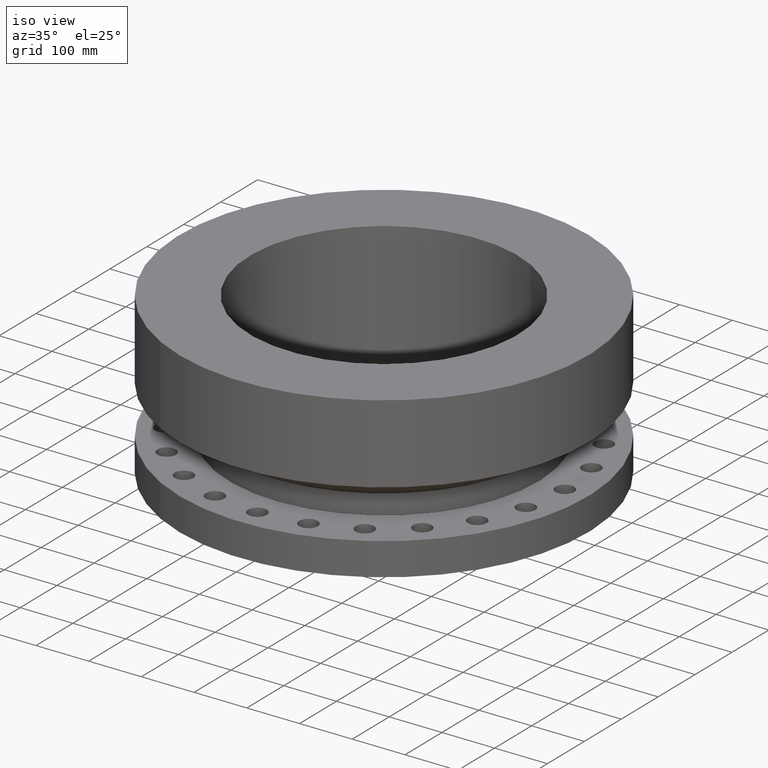
[diagram: clean part render]
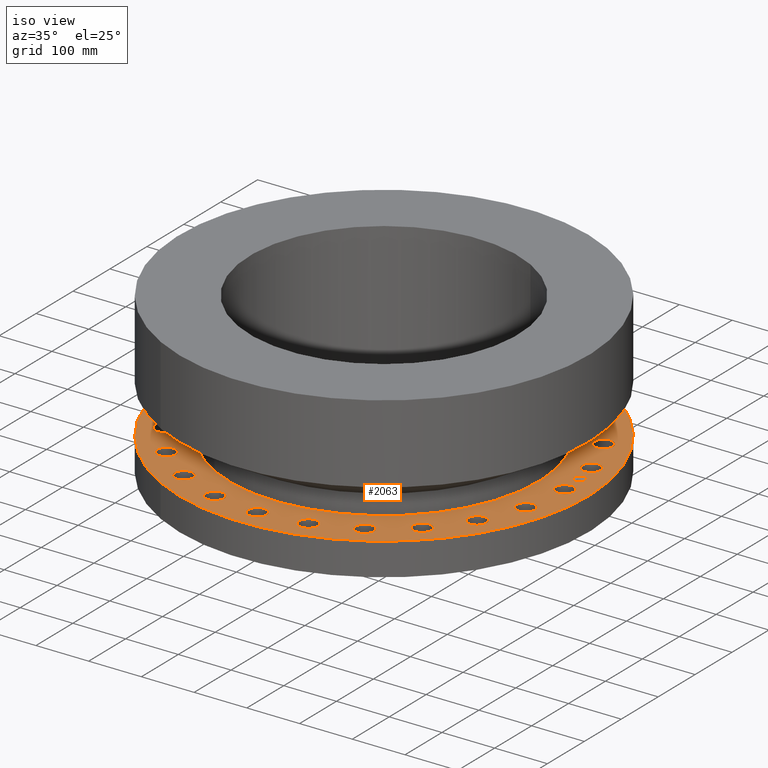
[diagram: same view with one face highlighted and labeled with its STEP entity id]
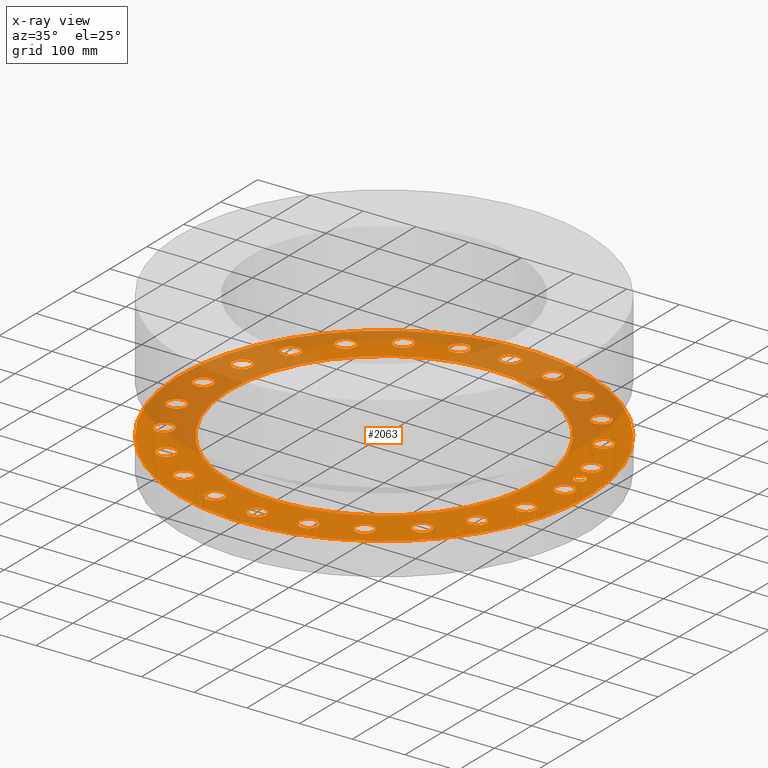
[diagram: x-ray of the same camera — body ghosted, the highlighted face saturated]
A machine part, iso view. The second image highlights one B-rep face of the part: STEP entity #2063.
The next image is the same camera in x-ray: the body ghosted, the highlighted face saturated — about 42% of this face is hidden behind the body in this view.
In plain terms, the highlighted planar face has unit normal (0, 0, -1).
Its self-contained STEP definition (entity closure, byte-faithful):
#65=AXIS2_PLACEMENT_3D('Circle Axis2P3D',#63,#64,$) ;
#554=AXIS2_PLACEMENT_3D('Circle Axis2P3D',#552,#553,$) ;
#573=AXIS2_PLACEMENT_3D('Circle Axis2P3D',#571,#572,$) ;
#590=AXIS2_PLACEMENT_3D('Circle Axis2P3D',#588,#589,$) ;
#625=AXIS2_PLACEMENT_3D('Circle Axis2P3D',#623,#624,$) ;
#937=AXIS2_PLACEMENT_3D('Circle Axis2P3D',#935,#936,$) ;
#968=AXIS2_PLACEMENT_3D('Circle Axis2P3D',#966,#967,$) ;
#980=AXIS2_PLACEMENT_3D('Circle Axis2P3D',#978,#979,$) ;
#1011=AXIS2_PLACEMENT_3D('Circle Axis2P3D',#1009,#1010,$) ;
#1023=AXIS2_PLACEMENT_3D('Circle Axis2P3D',#1021,#1022,$) ;
#1054=AXIS2_PLACEMENT_3D('Circle Axis2P3D',#1052,#1053,$) ;
#1066=AXIS2_PLACEMENT_3D('Circle Axis2P3D',#1064,#1065,$) ;
#1097=AXIS2_PLACEMENT_3D('Circle Axis2P3D',#1095,#1096,$) ;
#1109=AXIS2_PLACEMENT_3D('Circle Axis2P3D',#1107,#1108,$) ;
#1140=AXIS2_PLACEMENT_3D('Circle Axis2P3D',#1138,#1139,$) ;
#1152=AXIS2_PLACEMENT_3D('Circle Axis2P3D',#1150,#1151,$) ;
#1183=AXIS2_PLACEMENT_3D('Circle Axis2P3D',#1181,#1182,$) ;
#1195=AXIS2_PLACEMENT_3D('Circle Axis2P3D',#1193,#1194,$) ;
#1226=AXIS2_PLACEMENT_3D('Circle Axis2P3D',#1224,#1225,$) ;
#1238=AXIS2_PLACEMENT_3D('Circle Axis2P3D',#1236,#1237,$) ;
#1269=AXIS2_PLACEMENT_3D('Circle Axis2P3D',#1267,#1268,$) ;
#1281=AXIS2_PLACEMENT_3D('Circle Axis2P3D',#1279,#1280,$) ;
#1312=AXIS2_PLACEMENT_3D('Circle Axis2P3D',#1310,#1311,$) ;
#1324=AXIS2_PLACEMENT_3D('Circle Axis2P3D',#1322,#1323,$) ;
#1355=AXIS2_PLACEMENT_3D('Circle Axis2P3D',#1353,#1354,$) ;
#1367=AXIS2_PLACEMENT_3D('Circle Axis2P3D',#1365,#1366,$) ;
#1398=AXIS2_PLACEMENT_3D('Circle Axis2P3D',#1396,#1397,$) ;
#1410=AXIS2_PLACEMENT_3D('Circle Axis2P3D',#1408,#1409,$) ;
#1441=AXIS2_PLACEMENT_3D('Circle Axis2P3D',#1439,#1440,$) ;
#1453=AXIS2_PLACEMENT_3D('Circle Axis2P3D',#1451,#1452,$) ;
#1484=AXIS2_PLACEMENT_3D('Circle Axis2P3D',#1482,#1483,$) ;
#1496=AXIS2_PLACEMENT_3D('Circle Axis2P3D',#1494,#1495,$) ;
#1527=AXIS2_PLACEMENT_3D('Circle Axis2P3D',#1525,#1526,$) ;
#1539=AXIS2_PLACEMENT_3D('Circle Axis2P3D',#1537,#1538,$) ;
#1570=AXIS2_PLACEMENT_3D('Circle Axis2P3D',#1568,#1569,$) ;
#1582=AXIS2_PLACEMENT_3D('Circle Axis2P3D',#1580,#1581,$) ;
#1613=AXIS2_PLACEMENT_3D('Circle Axis2P3D',#1611,#1612,$) ;
#1625=AXIS2_PLACEMENT_3D('Circle Axis2P3D',#1623,#1624,$) ;
#1656=AXIS2_PLACEMENT_3D('Circle Axis2P3D',#1654,#1655,$) ;
#1668=AXIS2_PLACEMENT_3D('Circle Axis2P3D',#1666,#1667,$) ;
#1699=AXIS2_PLACEMENT_3D('Circle Axis2P3D',#1697,#1698,$) ;
#1711=AXIS2_PLACEMENT_3D('Circle Axis2P3D',#1709,#1710,$) ;
#1742=AXIS2_PLACEMENT_3D('Circle Axis2P3D',#1740,#1741,$) ;
#1754=AXIS2_PLACEMENT_3D('Circle Axis2P3D',#1752,#1753,$) ;
#1785=AXIS2_PLACEMENT_3D('Circle Axis2P3D',#1783,#1784,$) ;
#1797=AXIS2_PLACEMENT_3D('Circle Axis2P3D',#1795,#1796,$) ;
#1828=AXIS2_PLACEMENT_3D('Circle Axis2P3D',#1826,#1827,$) ;
#1840=AXIS2_PLACEMENT_3D('Circle Axis2P3D',#1838,#1839,$) ;
#1871=AXIS2_PLACEMENT_3D('Circle Axis2P3D',#1869,#1870,$) ;
#1883=AXIS2_PLACEMENT_3D('Circle Axis2P3D',#1881,#1882,$) ;
#1914=AXIS2_PLACEMENT_3D('Circle Axis2P3D',#1912,#1913,$) ;
#1926=AXIS2_PLACEMENT_3D('Circle Axis2P3D',#1924,#1925,$) ;
#1939=AXIS2_PLACEMENT_3D('Plane Axis2P3D',#1936,#1937,#1938) ;
#2047=AXIS2_PLACEMENT_3D('Circle Axis2P3D',#2045,#2046,$) ;
#2056=AXIS2_PLACEMENT_3D('Circle Axis2P3D',#2054,#2055,$) ;
#44=CARTESIAN_POINT('Vertex',(14.1055319678,0.330803621638,2.43750000001)) ;
#60=CARTESIAN_POINT('Vertex',(12.8944680323,-0.330803621638,2.43750000001)) ;
#63=CARTESIAN_POINT('Axis2P3D Location',(13.5000000001,0.,2.43750000001)) ;
#549=CARTESIAN_POINT('Vertex',(-7.31123946374,-13.3831340689,2.43750000001)) ;
#552=CARTESIAN_POINT('Axis2P3D Location',(0.,0.,2.43750000001)) ;
#556=CARTESIAN_POINT('Vertex',(7.31123946374,13.3831340689,2.43750000001)) ;
#571=CARTESIAN_POINT('Axis2P3D Location',(0.,0.,2.43750000001)) ;
#588=CARTESIAN_POINT('Axis2P3D Location',(0.,0.,2.43750000001)) ;
#592=CARTESIAN_POINT('Vertex',(5.53496784321,10.1316906771,2.43750000001)) ;
#594=CARTESIAN_POINT('Vertex',(-5.53496784321,-10.1316906771,2.43750000001)) ;
#623=CARTESIAN_POINT('Axis2P3D Location',(0.,0.,2.43750000001)) ;
#935=CARTESIAN_POINT('Axis2P3D Location',(13.5000000001,0.,2.43750000001)) ;
#956=CARTESIAN_POINT('Vertex',(13.7105158987,-3.33124855299,2.43750000001)) ;
#963=CARTESIAN_POINT('Vertex',(12.3694814112,-3.65686566481,2.43750000001)) ;
#966=CARTESIAN_POINT('Axis2P3D Location',(13.039998655,-3.4940571089,2.43750000001)) ;
#978=CARTESIAN_POINT('Axis2P3D Location',(13.039998655,-3.4940571089,2.43750000001)) ;
#999=CARTESIAN_POINT('Vertex',(12.3811508288,-6.76628164388,2.43750000001)) ;
#1006=CARTESIAN_POINT('Vertex',(11.0015350735,-6.73371835618,2.43750000001)) ;
#1009=CARTESIAN_POINT('Axis2P3D Location',(11.6913429511,-6.75000000003,2.43750000001)) ;
#1021=CARTESIAN_POINT('Axis2P3D Location',(11.6913429511,-6.75000000003,2.43750000001)) ;
#1042=CARTESIAN_POINT('Vertex',(10.2080307907,-9.74020382255,2.43750000001)) ;
#1049=CARTESIAN_POINT('Vertex',(8.88385230136,-9.35167926957,2.43750000001)) ;
#1052=CARTESIAN_POINT('Axis2P3D Location',(9.54594154606,-9.54594154606,2.43750000001)) ;
#1064=CARTESIAN_POINT('Axis2P3D Location',(9.54594154606,-9.54594154606,2.43750000001)) ;
#1085=CARTESIAN_POINT('Vertex',(7.33925032388,-12.0503472072,2.43750000001)) ;
#1092=CARTESIAN_POINT('Vertex',(6.16074967617,-11.3323386951,2.43750000001)) ;
#1095=CARTESIAN_POINT('Axis2P3D Location',(6.75000000003,-11.6913429511,2.43750000001)) ;
#1107=CARTESIAN_POINT('Axis2P3D Location',(6.75000000003,-11.6913429511,2.43750000001)) ;
#1128=CARTESIAN_POINT('Vertex',(3.97031207613,-13.5392793437,2.43750000001)) ;
#1135=CARTESIAN_POINT('Vertex',(3.01780214167,-12.5407179662,2.43750000001)) ;
#1138=CARTESIAN_POINT('Axis2P3D Location',(3.4940571089,-13.039998655,2.43750000001)) ;
#1150=CARTESIAN_POINT('Axis2P3D Location',(3.4940571089,-13.039998655,2.43750000001)) ;
#1171=CARTESIAN_POINT('Vertex',(0.330803621638,-14.1055319678,2.43750000001)) ;
#1178=CARTESIAN_POINT('Vertex',(-0.330803621638,-12.8944680323,2.43750000001)) ;
#1181=CARTESIAN_POINT('Axis2P3D Location',(-1.41129328698E-015,-13.5000000001,2.43750000001)) ;
#1193=CARTESIAN_POINT('Axis2P3D Location',(-1.41129328698E-015,-13.5000000001,2.43750000001)) ;
#1214=CARTESIAN_POINT('Vertex',(-3.33124855299,-13.7105158987,2.43750000001)) ;
#1221=CARTESIAN_POINT('Vertex',(-3.65686566481,-12.3694814112,2.43750000001)) ;
#1224=CARTESIAN_POINT('Axis2P3D Location',(-3.4940571089,-13.039998655,2.43750000001)) ;
#1236=CARTESIAN_POINT('Axis2P3D Location',(-3.4940571089,-13.039998655,2.43750000001)) ;
#1257=CARTESIAN_POINT('Vertex',(-6.76628164388,-12.3811508288,2.43750000001)) ;
#1264=CARTESIAN_POINT('Vertex',(-6.73371835618,-11.0015350735,2.43750000001)) ;
#1267=CARTESIAN_POINT('Axis2P3D Location',(-6.75000000003,-11.6913429511,2.43750000001)) ;
#1279=CARTESIAN_POINT('Axis2P3D Location',(-6.75000000003,-11.6913429511,2.43750000001)) ;
#1300=CARTESIAN_POINT('Vertex',(-9.74020382255,-10.2080307907,2.43750000001)) ;
#1307=CARTESIAN_POINT('Vertex',(-9.35167926957,-8.88385230136,2.43750000001)) ;
#1310=CARTESIAN_POINT('Axis2P3D Location',(-9.54594154606,-9.54594154606,2.43750000001)) ;
#1322=CARTESIAN_POINT('Axis2P3D Location',(-9.54594154606,-9.54594154606,2.43750000001)) ;
#1343=CARTESIAN_POINT('Vertex',(-12.0503472072,-7.33925032388,2.43750000001)) ;
#1350=CARTESIAN_POINT('Vertex',(-11.3323386951,-6.16074967617,2.43750000001)) ;
#1353=CARTESIAN_POINT('Axis2P3D Location',(-11.6913429511,-6.75000000003,2.43750000001)) ;
#1365=CARTESIAN_POINT('Axis2P3D Location',(-11.6913429511,-6.75000000003,2.43750000001)) ;
#1386=CARTESIAN_POINT('Vertex',(-13.5392793437,-3.97031207613,2.43750000001)) ;
#1393=CARTESIAN_POINT('Vertex',(-12.5407179662,-3.01780214167,2.43750000001)) ;
#1396=CARTESIAN_POINT('Axis2P3D Location',(-13.039998655,-3.4940571089,2.43750000001)) ;
#1408=CARTESIAN_POINT('Axis2P3D Location',(-13.039998655,-3.4940571089,2.43750000001)) ;
#1429=CARTESIAN_POINT('Vertex',(-14.1055319678,-0.330803621638,2.43750000001)) ;
#1436=CARTESIAN_POINT('Vertex',(-12.8944680323,0.330803621638,2.43750000001)) ;
#1439=CARTESIAN_POINT('Axis2P3D Location',(-13.5000000001,-1.65327317886E-015,2.43750000001)) ;
#1451=CARTESIAN_POINT('Axis2P3D Location',(-13.5000000001,-1.65327317886E-015,2.43750000001)) ;
#1472=CARTESIAN_POINT('Vertex',(-13.7105158987,3.33124855299,2.43750000001)) ;
#1479=CARTESIAN_POINT('Vertex',(-12.3694814112,3.65686566481,2.43750000001)) ;
#1482=CARTESIAN_POINT('Axis2P3D Location',(-13.039998655,3.4940571089,2.43750000001)) ;
#1494=CARTESIAN_POINT('Axis2P3D Location',(-13.039998655,3.4940571089,2.43750000001)) ;
#1515=CARTESIAN_POINT('Vertex',(-12.3811508288,6.76628164388,2.43750000001)) ;
#1522=CARTESIAN_POINT('Vertex',(-11.0015350735,6.73371835618,2.43750000001)) ;
#1525=CARTESIAN_POINT('Axis2P3D Location',(-11.6913429511,6.75000000003,2.43750000001)) ;
#1537=CARTESIAN_POINT('Axis2P3D Location',(-11.6913429511,6.75000000003,2.43750000001)) ;
#1558=CARTESIAN_POINT('Vertex',(-10.2080307907,9.74020382255,2.43750000001)) ;
#1565=CARTESIAN_POINT('Vertex',(-8.88385230136,9.35167926957,2.43750000001)) ;
#1568=CARTESIAN_POINT('Axis2P3D Location',(-9.54594154606,9.54594154606,2.43750000001)) ;
#1580=CARTESIAN_POINT('Axis2P3D Location',(-9.54594154606,9.54594154606,2.43750000001)) ;
#1601=CARTESIAN_POINT('Vertex',(-7.33925032388,12.0503472072,2.43750000001)) ;
#1608=CARTESIAN_POINT('Vertex',(-6.16074967617,11.3323386951,2.43750000001)) ;
#1611=CARTESIAN_POINT('Axis2P3D Location',(-6.75000000003,11.6913429511,2.43750000001)) ;
#1623=CARTESIAN_POINT('Axis2P3D Location',(-6.75000000003,11.6913429511,2.43750000001)) ;
#1644=CARTESIAN_POINT('Vertex',(-3.97031207613,13.5392793437,2.43750000001)) ;
#1651=CARTESIAN_POINT('Vertex',(-3.01780214167,12.5407179662,2.43750000001)) ;
#1654=CARTESIAN_POINT('Axis2P3D Location',(-3.4940571089,13.039998655,2.43750000001)) ;
#1666=CARTESIAN_POINT('Axis2P3D Location',(-3.4940571089,13.039998655,2.43750000001)) ;
#1687=CARTESIAN_POINT('Vertex',(-0.330803621638,14.1055319678,2.43750000001)) ;
#1694=CARTESIAN_POINT('Vertex',(0.330803621638,12.8944680323,2.43750000001)) ;
#1697=CARTESIAN_POINT('Axis2P3D Location',(-2.47990976828E-015,13.5000000001,2.43750000001)) ;
#1709=CARTESIAN_POINT('Axis2P3D Location',(-2.47990976828E-015,13.5000000001,2.43750000001)) ;
#1730=CARTESIAN_POINT('Vertex',(3.33124855299,13.7105158987,2.43750000001)) ;
#1737=CARTESIAN_POINT('Vertex',(3.65686566481,12.3694814112,2.43750000001)) ;
#1740=CARTESIAN_POINT('Axis2P3D Location',(3.4940571089,13.039998655,2.43750000001)) ;
#1752=CARTESIAN_POINT('Axis2P3D Location',(3.4940571089,13.039998655,2.43750000001)) ;
#1773=CARTESIAN_POINT('Vertex',(6.76628164388,12.3811508288,2.43750000001)) ;
#1780=CARTESIAN_POINT('Vertex',(6.73371835618,11.0015350735,2.43750000001)) ;
#1783=CARTESIAN_POINT('Axis2P3D Location',(6.75000000003,11.6913429511,2.43750000001)) ;
#1795=CARTESIAN_POINT('Axis2P3D Location',(6.75000000003,11.6913429511,2.43750000001)) ;
#1816=CARTESIAN_POINT('Vertex',(9.74020382255,10.2080307907,2.43750000001)) ;
#1823=CARTESIAN_POINT('Vertex',(9.35167926957,8.88385230136,2.43750000001)) ;
#1826=CARTESIAN_POINT('Axis2P3D Location',(9.54594154606,9.54594154606,2.43750000001)) ;
#1838=CARTESIAN_POINT('Axis2P3D Location',(9.54594154606,9.54594154606,2.43750000001)) ;
#1859=CARTESIAN_POINT('Vertex',(12.0503472072,7.33925032388,2.43750000001)) ;
#1866=CARTESIAN_POINT('Vertex',(11.3323386951,6.16074967617,2.43750000001)) ;
#1869=CARTESIAN_POINT('Axis2P3D Location',(11.6913429511,6.75000000003,2.43750000001)) ;
#1881=CARTESIAN_POINT('Axis2P3D Location',(11.6913429511,6.75000000003,2.43750000001)) ;
#1902=CARTESIAN_POINT('Vertex',(13.5392793437,3.97031207613,2.43750000001)) ;
#1909=CARTESIAN_POINT('Vertex',(12.5407179662,3.01780214167,2.43750000001)) ;
#1912=CARTESIAN_POINT('Axis2P3D Location',(13.039998655,3.4940571089,2.43750000001)) ;
#1924=CARTESIAN_POINT('Axis2P3D Location',(13.039998655,3.4940571089,2.43750000001)) ;
#1936=CARTESIAN_POINT('Axis2P3D Location',(0.,15.2500000001,2.43750000001)) ;
#2045=CARTESIAN_POINT('Axis2P3D Location',(13.3845056286,1.76210359498,2.43750000001)) ;
#2049=CARTESIAN_POINT('Vertex',(13.4399792597,1.34073953311,2.43750000001)) ;
#2051=CARTESIAN_POINT('Vertex',(13.3290319975,2.18346765685,2.43750000001)) ;
#2054=CARTESIAN_POINT('Axis2P3D Location',(13.3845056286,1.76210359498,2.43750000001)) ;
#64=DIRECTION('Axis2P3D Direction',(0.,-0.,0.0393700787402)) ;
#553=DIRECTION('Axis2P3D Direction',(0.,0.,-0.0393700787402)) ;
#572=DIRECTION('Axis2P3D Direction',(0.,0.,-0.0393700787402)) ;
#589=DIRECTION('Axis2P3D Direction',(0.,0.,-0.0393700787402)) ;
#624=DIRECTION('Axis2P3D Direction',(0.,0.,-0.0393700787402)) ;
#936=DIRECTION('Axis2P3D Direction',(0.,-0.,0.0393700787402)) ;
#967=DIRECTION('Axis2P3D Direction',(-0.,0.,0.0393700787402)) ;
#979=DIRECTION('Axis2P3D Direction',(-0.,0.,0.0393700787402)) ;
#1010=DIRECTION('Axis2P3D Direction',(-0.,0.,0.0393700787402)) ;
#1022=DIRECTION('Axis2P3D Direction',(-0.,0.,0.0393700787402)) ;
#1053=DIRECTION('Axis2P3D Direction',(-0.,0.,0.0393700787402)) ;
#1065=DIRECTION('Axis2P3D Direction',(-0.,0.,0.0393700787402)) ;
#1096=DIRECTION('Axis2P3D Direction',(-0.,0.,0.0393700787402)) ;
#1108=DIRECTION('Axis2P3D Direction',(-0.,0.,0.0393700787402)) ;
#1139=DIRECTION('Axis2P3D Direction',(-0.,0.,0.0393700787402)) ;
#1151=DIRECTION('Axis2P3D Direction',(-0.,0.,0.0393700787402)) ;
#1182=DIRECTION('Axis2P3D Direction',(-0.,0.,0.0393700787402)) ;
#1194=DIRECTION('Axis2P3D Direction',(-0.,0.,0.0393700787402)) ;
#1225=DIRECTION('Axis2P3D Direction',(0.,0.,0.0393700787402)) ;
#1237=DIRECTION('Axis2P3D Direction',(0.,0.,0.0393700787402)) ;
#1268=DIRECTION('Axis2P3D Direction',(0.,0.,0.0393700787402)) ;
#1280=DIRECTION('Axis2P3D Direction',(0.,0.,0.0393700787402)) ;
#1311=DIRECTION('Axis2P3D Direction',(0.,0.,0.0393700787402)) ;
#1323=DIRECTION('Axis2P3D Direction',(0.,0.,0.0393700787402)) ;
#1354=DIRECTION('Axis2P3D Direction',(0.,0.,0.0393700787402)) ;
#1366=DIRECTION('Axis2P3D Direction',(0.,0.,0.0393700787402)) ;
#1397=DIRECTION('Axis2P3D Direction',(0.,0.,0.0393700787402)) ;
#1409=DIRECTION('Axis2P3D Direction',(0.,0.,0.0393700787402)) ;
#1440=DIRECTION('Axis2P3D Direction',(0.,0.,0.0393700787402)) ;
#1452=DIRECTION('Axis2P3D Direction',(0.,0.,0.0393700787402)) ;
#1483=DIRECTION('Axis2P3D Direction',(0.,0.,0.0393700787402)) ;
#1495=DIRECTION('Axis2P3D Direction',(0.,0.,0.0393700787402)) ;
#1526=DIRECTION('Axis2P3D Direction',(0.,0.,0.0393700787402)) ;
#1538=DIRECTION('Axis2P3D Direction',(0.,0.,0.0393700787402)) ;
#1569=DIRECTION('Axis2P3D Direction',(0.,0.,0.0393700787402)) ;
#1581=DIRECTION('Axis2P3D Direction',(0.,0.,0.0393700787402)) ;
#1612=DIRECTION('Axis2P3D Direction',(0.,0.,0.0393700787402)) ;
#1624=DIRECTION('Axis2P3D Direction',(0.,0.,0.0393700787402)) ;
#1655=DIRECTION('Axis2P3D Direction',(0.,0.,0.0393700787402)) ;
#1667=DIRECTION('Axis2P3D Direction',(0.,0.,0.0393700787402)) ;
#1698=DIRECTION('Axis2P3D Direction',(0.,0.,0.0393700787402)) ;
#1710=DIRECTION('Axis2P3D Direction',(0.,0.,0.0393700787402)) ;
#1741=DIRECTION('Axis2P3D Direction',(0.,-0.,0.0393700787402)) ;
#1753=DIRECTION('Axis2P3D Direction',(0.,-0.,0.0393700787402)) ;
#1784=DIRECTION('Axis2P3D Direction',(0.,-0.,0.0393700787402)) ;
#1796=DIRECTION('Axis2P3D Direction',(0.,-0.,0.0393700787402)) ;
#1827=DIRECTION('Axis2P3D Direction',(0.,-0.,0.0393700787402)) ;
#1839=DIRECTION('Axis2P3D Direction',(0.,-0.,0.0393700787402)) ;
#1870=DIRECTION('Axis2P3D Direction',(0.,-0.,0.0393700787402)) ;
#1882=DIRECTION('Axis2P3D Direction',(0.,-0.,0.0393700787402)) ;
#1913=DIRECTION('Axis2P3D Direction',(0.,-0.,0.0393700787402)) ;
#1925=DIRECTION('Axis2P3D Direction',(0.,-0.,0.0393700787402)) ;
#1937=DIRECTION('Axis2P3D Direction',(0.,0.,-0.0393700787402)) ;
#1938=DIRECTION('Axis2P3D XDirection',(0.0393700787402,0.,0.)) ;
#2046=DIRECTION('Axis2P3D Direction',(0.,0.,-0.0393700787402)) ;
#2055=DIRECTION('Axis2P3D Direction',(0.,0.,-0.0393700787402)) ;
#1942=ORIENTED_EDGE('',*,*,#575,.F.) ;
#1943=ORIENTED_EDGE('',*,*,#558,.F.) ;
#1946=ORIENTED_EDGE('',*,*,#67,.T.) ;
#1947=ORIENTED_EDGE('',*,*,#939,.T.) ;
#1950=ORIENTED_EDGE('',*,*,#627,.T.) ;
#1951=ORIENTED_EDGE('',*,*,#596,.T.) ;
#1954=ORIENTED_EDGE('',*,*,#982,.T.) ;
#1955=ORIENTED_EDGE('',*,*,#970,.T.) ;
#1958=ORIENTED_EDGE('',*,*,#1025,.T.) ;
#1959=ORIENTED_EDGE('',*,*,#1013,.T.) ;
#1962=ORIENTED_EDGE('',*,*,#1068,.T.) ;
#1963=ORIENTED_EDGE('',*,*,#1056,.T.) ;
#1966=ORIENTED_EDGE('',*,*,#1111,.T.) ;
#1967=ORIENTED_EDGE('',*,*,#1099,.T.) ;
#1970=ORIENTED_EDGE('',*,*,#1154,.T.) ;
#1971=ORIENTED_EDGE('',*,*,#1142,.T.) ;
#1974=ORIENTED_EDGE('',*,*,#1197,.T.) ;
#1975=ORIENTED_EDGE('',*,*,#1185,.T.) ;
#1978=ORIENTED_EDGE('',*,*,#1240,.T.) ;
#1979=ORIENTED_EDGE('',*,*,#1228,.T.) ;
#1982=ORIENTED_EDGE('',*,*,#1283,.T.) ;
#1983=ORIENTED_EDGE('',*,*,#1271,.T.) ;
#1986=ORIENTED_EDGE('',*,*,#1326,.T.) ;
#1987=ORIENTED_EDGE('',*,*,#1314,.T.) ;
#1990=ORIENTED_EDGE('',*,*,#1369,.T.) ;
#1991=ORIENTED_EDGE('',*,*,#1357,.T.) ;
#1994=ORIENTED_EDGE('',*,*,#1412,.T.) ;
#1995=ORIENTED_EDGE('',*,*,#1400,.T.) ;
#1998=ORIENTED_EDGE('',*,*,#1455,.T.) ;
#1999=ORIENTED_EDGE('',*,*,#1443,.T.) ;
#2002=ORIENTED_EDGE('',*,*,#1498,.T.) ;
#2003=ORIENTED_EDGE('',*,*,#1486,.T.) ;
#2006=ORIENTED_EDGE('',*,*,#1541,.T.) ;
#2007=ORIENTED_EDGE('',*,*,#1529,.T.) ;
#2010=ORIENTED_EDGE('',*,*,#1584,.T.) ;
#2011=ORIENTED_EDGE('',*,*,#1572,.T.) ;
#2014=ORIENTED_EDGE('',*,*,#1627,.T.) ;
#2015=ORIENTED_EDGE('',*,*,#1615,.T.) ;
#2018=ORIENTED_EDGE('',*,*,#1670,.T.) ;
#2019=ORIENTED_EDGE('',*,*,#1658,.T.) ;
#2022=ORIENTED_EDGE('',*,*,#1713,.T.) ;
#2023=ORIENTED_EDGE('',*,*,#1701,.T.) ;
#2026=ORIENTED_EDGE('',*,*,#1756,.T.) ;
#2027=ORIENTED_EDGE('',*,*,#1744,.T.) ;
#2030=ORIENTED_EDGE('',*,*,#1799,.T.) ;
#2031=ORIENTED_EDGE('',*,*,#1787,.T.) ;
#2034=ORIENTED_EDGE('',*,*,#1842,.T.) ;
#2035=ORIENTED_EDGE('',*,*,#1830,.T.) ;
#2038=ORIENTED_EDGE('',*,*,#1885,.T.) ;
#2039=ORIENTED_EDGE('',*,*,#1873,.T.) ;
#2042=ORIENTED_EDGE('',*,*,#1928,.T.) ;
#2043=ORIENTED_EDGE('',*,*,#1916,.T.) ;
#2060=ORIENTED_EDGE('',*,*,#2053,.F.) ;
#2061=ORIENTED_EDGE('',*,*,#2058,.F.) ;
#1948=FACE_BOUND('',#1945,.T.) ;
#1952=FACE_BOUND('',#1949,.T.) ;
#1956=FACE_BOUND('',#1953,.T.) ;
#1960=FACE_BOUND('',#1957,.T.) ;
#1964=FACE_BOUND('',#1961,.T.) ;
#1968=FACE_BOUND('',#1965,.T.) ;
#1972=FACE_BOUND('',#1969,.T.) ;
#1976=FACE_BOUND('',#1973,.T.) ;
#1980=FACE_BOUND('',#1977,.T.) ;
#1984=FACE_BOUND('',#1981,.T.) ;
#1988=FACE_BOUND('',#1985,.T.) ;
#1992=FACE_BOUND('',#1989,.T.) ;
#1996=FACE_BOUND('',#1993,.T.) ;
#2000=FACE_BOUND('',#1997,.T.) ;
#2004=FACE_BOUND('',#2001,.T.) ;
#2008=FACE_BOUND('',#2005,.T.) ;
#2012=FACE_BOUND('',#2009,.T.) ;
#2016=FACE_BOUND('',#2013,.T.) ;
#2020=FACE_BOUND('',#2017,.T.) ;
#2024=FACE_BOUND('',#2021,.T.) ;
#2028=FACE_BOUND('',#2025,.T.) ;
#2032=FACE_BOUND('',#2029,.T.) ;
#2036=FACE_BOUND('',#2033,.T.) ;
#2040=FACE_BOUND('',#2037,.T.) ;
#2044=FACE_BOUND('',#2041,.T.) ;
#2062=FACE_BOUND('',#2059,.T.) ;
#2063=ADVANCED_FACE('PartBody',(#1944,#1948,#1952,#1956,#1960,#1964,#1968,#1972,#1976,#1980,#1984,#1988,#1992,#1996,#2000,#2004,#2008,#2012,#2016,#2020,#2024,#2028,#2032,#2036,#2040,#2044,#2062),#1940,.F.) ;
#66=CIRCLE('generated circle',#65,0.690000000003) ;
#555=CIRCLE('generated circle',#554,15.2500000001) ;
#574=CIRCLE('generated circle',#573,15.2500000001) ;
#591=CIRCLE('generated circle',#590,11.545) ;
#626=CIRCLE('generated circle',#625,11.545) ;
#938=CIRCLE('generated circle',#937,0.690000000003) ;
#969=CIRCLE('generated circle',#968,0.690000000003) ;
#981=CIRCLE('generated circle',#980,0.690000000003) ;
#1012=CIRCLE('generated circle',#1011,0.690000000003) ;
#1024=CIRCLE('generated circle',#1023,0.690000000003) ;
#1055=CIRCLE('generated circle',#1054,0.690000000003) ;
#1067=CIRCLE('generated circle',#1066,0.690000000003) ;
#1098=CIRCLE('generated circle',#1097,0.690000000003) ;
#1110=CIRCLE('generated circle',#1109,0.690000000003) ;
#1141=CIRCLE('generated circle',#1140,0.690000000003) ;
#1153=CIRCLE('generated circle',#1152,0.690000000003) ;
#1184=CIRCLE('generated circle',#1183,0.690000000003) ;
#1196=CIRCLE('generated circle',#1195,0.690000000003) ;
#1227=CIRCLE('generated circle',#1226,0.690000000003) ;
#1239=CIRCLE('generated circle',#1238,0.690000000003) ;
#1270=CIRCLE('generated circle',#1269,0.690000000003) ;
#1282=CIRCLE('generated circle',#1281,0.690000000003) ;
#1313=CIRCLE('generated circle',#1312,0.690000000003) ;
#1325=CIRCLE('generated circle',#1324,0.690000000003) ;
#1356=CIRCLE('generated circle',#1355,0.690000000003) ;
#1368=CIRCLE('generated circle',#1367,0.690000000003) ;
#1399=CIRCLE('generated circle',#1398,0.690000000003) ;
#1411=CIRCLE('generated circle',#1410,0.690000000003) ;
#1442=CIRCLE('generated circle',#1441,0.690000000003) ;
#1454=CIRCLE('generated circle',#1453,0.690000000003) ;
#1485=CIRCLE('generated circle',#1484,0.690000000003) ;
#1497=CIRCLE('generated circle',#1496,0.690000000003) ;
#1528=CIRCLE('generated circle',#1527,0.690000000003) ;
#1540=CIRCLE('generated circle',#1539,0.690000000003) ;
#1571=CIRCLE('generated circle',#1570,0.690000000003) ;
#1583=CIRCLE('generated circle',#1582,0.690000000003) ;
#1614=CIRCLE('generated circle',#1613,0.690000000003) ;
#1626=CIRCLE('generated circle',#1625,0.690000000003) ;
#1657=CIRCLE('generated circle',#1656,0.690000000003) ;
#1669=CIRCLE('generated circle',#1668,0.690000000003) ;
#1700=CIRCLE('generated circle',#1699,0.690000000003) ;
#1712=CIRCLE('generated circle',#1711,0.690000000003) ;
#1743=CIRCLE('generated circle',#1742,0.690000000003) ;
#1755=CIRCLE('generated circle',#1754,0.690000000003) ;
#1786=CIRCLE('generated circle',#1785,0.690000000003) ;
#1798=CIRCLE('generated circle',#1797,0.690000000003) ;
#1829=CIRCLE('generated circle',#1828,0.690000000003) ;
#1841=CIRCLE('generated circle',#1840,0.690000000003) ;
#1872=CIRCLE('generated circle',#1871,0.690000000003) ;
#1884=CIRCLE('generated circle',#1883,0.690000000003) ;
#1915=CIRCLE('generated circle',#1914,0.690000000003) ;
#1927=CIRCLE('generated circle',#1926,0.690000000003) ;
#2048=CIRCLE('generated circle',#2047,0.424999995752) ;
#2057=CIRCLE('generated circle',#2056,0.424999995752) ;
#67=EDGE_CURVE('',#45,#61,#66,.F.) ;
#558=EDGE_CURVE('',#550,#557,#555,.T.) ;
#575=EDGE_CURVE('',#557,#550,#574,.T.) ;
#596=EDGE_CURVE('',#593,#595,#591,.T.) ;
#627=EDGE_CURVE('',#595,#593,#626,.T.) ;
#939=EDGE_CURVE('',#61,#45,#938,.F.) ;
#970=EDGE_CURVE('',#957,#964,#969,.F.) ;
#982=EDGE_CURVE('',#964,#957,#981,.F.) ;
#1013=EDGE_CURVE('',#1000,#1007,#1012,.F.) ;
#1025=EDGE_CURVE('',#1007,#1000,#1024,.F.) ;
#1056=EDGE_CURVE('',#1043,#1050,#1055,.F.) ;
#1068=EDGE_CURVE('',#1050,#1043,#1067,.F.) ;
#1099=EDGE_CURVE('',#1086,#1093,#1098,.F.) ;
#1111=EDGE_CURVE('',#1093,#1086,#1110,.F.) ;
#1142=EDGE_CURVE('',#1129,#1136,#1141,.F.) ;
#1154=EDGE_CURVE('',#1136,#1129,#1153,.F.) ;
#1185=EDGE_CURVE('',#1172,#1179,#1184,.F.) ;
#1197=EDGE_CURVE('',#1179,#1172,#1196,.F.) ;
#1228=EDGE_CURVE('',#1215,#1222,#1227,.F.) ;
#1240=EDGE_CURVE('',#1222,#1215,#1239,.F.) ;
#1271=EDGE_CURVE('',#1258,#1265,#1270,.F.) ;
#1283=EDGE_CURVE('',#1265,#1258,#1282,.F.) ;
#1314=EDGE_CURVE('',#1301,#1308,#1313,.F.) ;
#1326=EDGE_CURVE('',#1308,#1301,#1325,.F.) ;
#1357=EDGE_CURVE('',#1344,#1351,#1356,.F.) ;
#1369=EDGE_CURVE('',#1351,#1344,#1368,.F.) ;
#1400=EDGE_CURVE('',#1387,#1394,#1399,.F.) ;
#1412=EDGE_CURVE('',#1394,#1387,#1411,.F.) ;
#1443=EDGE_CURVE('',#1430,#1437,#1442,.F.) ;
#1455=EDGE_CURVE('',#1437,#1430,#1454,.F.) ;
#1486=EDGE_CURVE('',#1473,#1480,#1485,.F.) ;
#1498=EDGE_CURVE('',#1480,#1473,#1497,.F.) ;
#1529=EDGE_CURVE('',#1516,#1523,#1528,.F.) ;
#1541=EDGE_CURVE('',#1523,#1516,#1540,.F.) ;
#1572=EDGE_CURVE('',#1559,#1566,#1571,.F.) ;
#1584=EDGE_CURVE('',#1566,#1559,#1583,.F.) ;
#1615=EDGE_CURVE('',#1602,#1609,#1614,.F.) ;
#1627=EDGE_CURVE('',#1609,#1602,#1626,.F.) ;
#1658=EDGE_CURVE('',#1645,#1652,#1657,.F.) ;
#1670=EDGE_CURVE('',#1652,#1645,#1669,.F.) ;
#1701=EDGE_CURVE('',#1688,#1695,#1700,.F.) ;
#1713=EDGE_CURVE('',#1695,#1688,#1712,.F.) ;
#1744=EDGE_CURVE('',#1731,#1738,#1743,.F.) ;
#1756=EDGE_CURVE('',#1738,#1731,#1755,.F.) ;
#1787=EDGE_CURVE('',#1774,#1781,#1786,.F.) ;
#1799=EDGE_CURVE('',#1781,#1774,#1798,.F.) ;
#1830=EDGE_CURVE('',#1817,#1824,#1829,.F.) ;
#1842=EDGE_CURVE('',#1824,#1817,#1841,.F.) ;
#1873=EDGE_CURVE('',#1860,#1867,#1872,.F.) ;
#1885=EDGE_CURVE('',#1867,#1860,#1884,.F.) ;
#1916=EDGE_CURVE('',#1903,#1910,#1915,.F.) ;
#1928=EDGE_CURVE('',#1910,#1903,#1927,.F.) ;
#2053=EDGE_CURVE('',#2050,#2052,#2048,.F.) ;
#2058=EDGE_CURVE('',#2052,#2050,#2057,.F.) ;
#1941=EDGE_LOOP('',(#1942,#1943)) ;
#1945=EDGE_LOOP('',(#1946,#1947)) ;
#1949=EDGE_LOOP('',(#1950,#1951)) ;
#1953=EDGE_LOOP('',(#1954,#1955)) ;
#1957=EDGE_LOOP('',(#1958,#1959)) ;
#1961=EDGE_LOOP('',(#1962,#1963)) ;
#1965=EDGE_LOOP('',(#1966,#1967)) ;
#1969=EDGE_LOOP('',(#1970,#1971)) ;
#1973=EDGE_LOOP('',(#1974,#1975)) ;
#1977=EDGE_LOOP('',(#1978,#1979)) ;
#1981=EDGE_LOOP('',(#1982,#1983)) ;
#1985=EDGE_LOOP('',(#1986,#1987)) ;
#1989=EDGE_LOOP('',(#1990,#1991)) ;
#1993=EDGE_LOOP('',(#1994,#1995)) ;
#1997=EDGE_LOOP('',(#1998,#1999)) ;
#2001=EDGE_LOOP('',(#2002,#2003)) ;
#2005=EDGE_LOOP('',(#2006,#2007)) ;
#2009=EDGE_LOOP('',(#2010,#2011)) ;
#2013=EDGE_LOOP('',(#2014,#2015)) ;
#2017=EDGE_LOOP('',(#2018,#2019)) ;
#2021=EDGE_LOOP('',(#2022,#2023)) ;
#2025=EDGE_LOOP('',(#2026,#2027)) ;
#2029=EDGE_LOOP('',(#2030,#2031)) ;
#2033=EDGE_LOOP('',(#2034,#2035)) ;
#2037=EDGE_LOOP('',(#2038,#2039)) ;
#2041=EDGE_LOOP('',(#2042,#2043)) ;
#2059=EDGE_LOOP('',(#2060,#2061)) ;
#1944=FACE_OUTER_BOUND('',#1941,.T.) ;
#1940=PLANE('',#1939) ;
#45=VERTEX_POINT('',#44) ;
#61=VERTEX_POINT('',#60) ;
#550=VERTEX_POINT('',#549) ;
#557=VERTEX_POINT('',#556) ;
#593=VERTEX_POINT('',#592) ;
#595=VERTEX_POINT('',#594) ;
#957=VERTEX_POINT('',#956) ;
#964=VERTEX_POINT('',#963) ;
#1000=VERTEX_POINT('',#999) ;
#1007=VERTEX_POINT('',#1006) ;
#1043=VERTEX_POINT('',#1042) ;
#1050=VERTEX_POINT('',#1049) ;
#1086=VERTEX_POINT('',#1085) ;
#1093=VERTEX_POINT('',#1092) ;
#1129=VERTEX_POINT('',#1128) ;
#1136=VERTEX_POINT('',#1135) ;
#1172=VERTEX_POINT('',#1171) ;
#1179=VERTEX_POINT('',#1178) ;
#1215=VERTEX_POINT('',#1214) ;
#1222=VERTEX_POINT('',#1221) ;
#1258=VERTEX_POINT('',#1257) ;
#1265=VERTEX_POINT('',#1264) ;
#1301=VERTEX_POINT('',#1300) ;
#1308=VERTEX_POINT('',#1307) ;
#1344=VERTEX_POINT('',#1343) ;
#1351=VERTEX_POINT('',#1350) ;
#1387=VERTEX_POINT('',#1386) ;
#1394=VERTEX_POINT('',#1393) ;
#1430=VERTEX_POINT('',#1429) ;
#1437=VERTEX_POINT('',#1436) ;
#1473=VERTEX_POINT('',#1472) ;
#1480=VERTEX_POINT('',#1479) ;
#1516=VERTEX_POINT('',#1515) ;
#1523=VERTEX_POINT('',#1522) ;
#1559=VERTEX_POINT('',#1558) ;
#1566=VERTEX_POINT('',#1565) ;
#1602=VERTEX_POINT('',#1601) ;
#1609=VERTEX_POINT('',#1608) ;
#1645=VERTEX_POINT('',#1644) ;
#1652=VERTEX_POINT('',#1651) ;
#1688=VERTEX_POINT('',#1687) ;
#1695=VERTEX_POINT('',#1694) ;
#1731=VERTEX_POINT('',#1730) ;
#1738=VERTEX_POINT('',#1737) ;
#1774=VERTEX_POINT('',#1773) ;
#1781=VERTEX_POINT('',#1780) ;
#1817=VERTEX_POINT('',#1816) ;
#1824=VERTEX_POINT('',#1823) ;
#1860=VERTEX_POINT('',#1859) ;
#1867=VERTEX_POINT('',#1866) ;
#1903=VERTEX_POINT('',#1902) ;
#1910=VERTEX_POINT('',#1909) ;
#2050=VERTEX_POINT('',#2049) ;
#2052=VERTEX_POINT('',#2051) ;